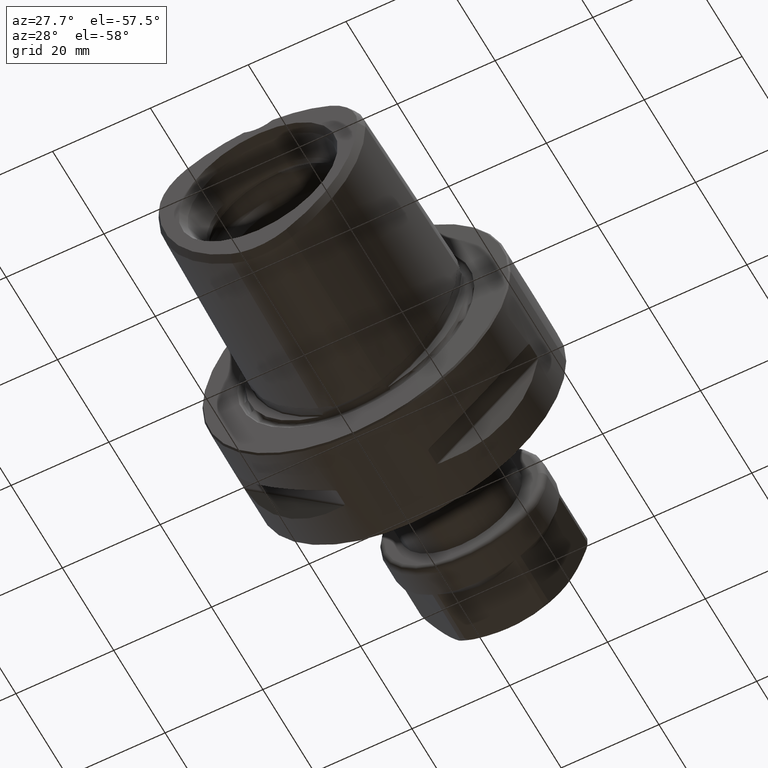
[diagram: clean part render]
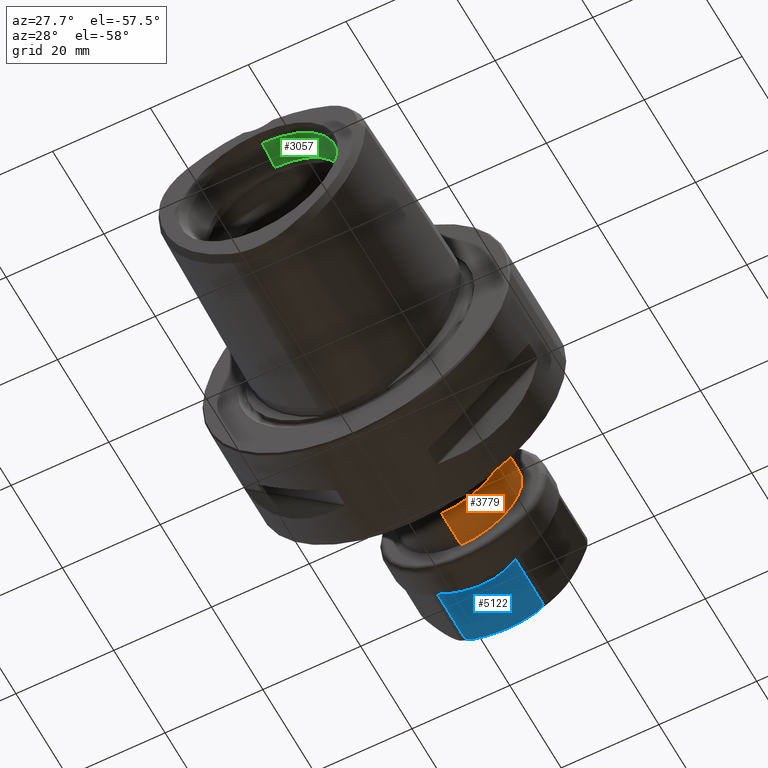
[diagram: same view with three faces highlighted in distinct colors, each labeled with its STEP entity id]
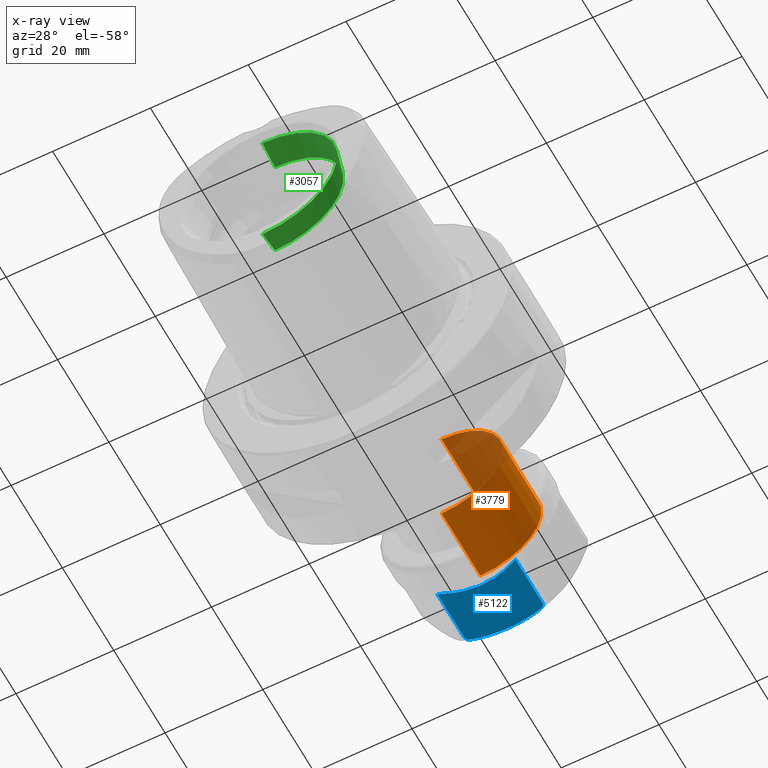
[diagram: x-ray of the same camera — body ghosted, the three highlighted faces saturated]
A machine part, auxiliary view with three faces highlighted in distinct colors.
The next image is the same camera in x-ray (body ghosted, the three faces saturated) — at least one of them is partly hidden behind the body in this view.
Their STEP definitions:

[orange] entity #3779 — the highlighted cylindrical surface (partial cylindrical patch) has radius 12.5 mm, axis along (0, 1, 0).
#1690=DIRECTION('',(1.052195914751E-12,-1.E0,0.E0));
#1691=VECTOR('',#1690,1.508578643763E1);
#1692=CARTESIAN_POINT('',(0.E0,4.85E1,-1.25E1));
#1693=LINE('',#1692,#1691);
#1699=DIRECTION('',(-1.052318335199E-12,-1.E0,0.E0));
#1700=VECTOR('',#1699,1.508578643763E1);
#1701=CARTESIAN_POINT('',(0.E0,4.85E1,1.25E1));
#1702=LINE('',#1701,#1700);
#1703=CARTESIAN_POINT('',(0.E0,3.341421356237E1,0.E0));
#1704=DIRECTION('',(0.E0,1.E0,0.E0));
#1705=DIRECTION('',(0.E0,0.E0,1.E0));
#1706=AXIS2_PLACEMENT_3D('',#1703,#1704,#1705);
#1708=CARTESIAN_POINT('',(0.E0,4.85E1,0.E0));
#1709=DIRECTION('',(0.E0,1.E0,0.E0));
#1710=DIRECTION('',(0.E0,0.E0,1.E0));
#1711=AXIS2_PLACEMENT_3D('',#1708,#1709,#1710);
#2138=CARTESIAN_POINT('',(0.E0,4.85E1,1.25E1));
#2139=CARTESIAN_POINT('',(0.E0,4.85E1,-1.25E1));
#2140=VERTEX_POINT('',#2138);
#2141=VERTEX_POINT('',#2139);
#2154=CARTESIAN_POINT('',(0.E0,3.341421356237E1,-1.25E1));
#2155=CARTESIAN_POINT('',(0.E0,3.341421356237E1,1.25E1));
#2156=VERTEX_POINT('',#2154);
#2157=VERTEX_POINT('',#2155);
#3767=CARTESIAN_POINT('',(0.E0,2.0675E1,0.E0));
#3768=DIRECTION('',(0.E0,1.E0,0.E0));
#3769=DIRECTION('',(0.E0,0.E0,-1.E0));
#3770=AXIS2_PLACEMENT_3D('',#3767,#3768,#3769);
#3771=CYLINDRICAL_SURFACE('',#3770,1.25E1);
#3772=ORIENTED_EDGE('',*,*,#3732,.F.);
#3773=ORIENTED_EDGE('',*,*,#3762,.F.);
#3775=ORIENTED_EDGE('',*,*,#3774,.T.);
#3776=ORIENTED_EDGE('',*,*,#3758,.T.);
#3777=EDGE_LOOP('',(#3772,#3773,#3775,#3776));
#3778=FACE_OUTER_BOUND('',#3777,.F.);
#3779=ADVANCED_FACE('',(#3778),#3771,.T.);
#1707=CIRCLE('',#1706,1.25E1);
#1712=CIRCLE('',#1711,1.25E1);
#3732=EDGE_CURVE('',#2157,#2156,#1707,.T.);
#3758=EDGE_CURVE('',#2141,#2156,#1693,.T.);
#3762=EDGE_CURVE('',#2140,#2157,#1702,.T.);
#3774=EDGE_CURVE('',#2140,#2141,#1712,.T.);

[blue] entity #5122 — the highlighted planar face has unit normal (0, 0, 1).
#4365=CARTESIAN_POINT('',(1.762879311067E1,-6.568152327710E0,-1.5E1));
#4366=CARTESIAN_POINT('',(1.783518476881E1,-5.676920146633E0,-1.5E1));
#4367=CARTESIAN_POINT('',(1.817379271881E1,-3.907290139793E0,-1.5E1));
#4368=CARTESIAN_POINT('',(1.843326934202E1,-1.305260671272E0,-1.5E1));
#4369=CARTESIAN_POINT('',(1.843317407038E1,1.306799612845E0,-1.5E1));
#4370=CARTESIAN_POINT('',(1.817365600931E1,3.908043632508E0,-1.5E1));
#4371=CARTESIAN_POINT('',(1.783512110256E1,5.677195067685E0,-1.5E1));
#4372=CARTESIAN_POINT('',(1.762879311067E1,6.568152327710E0,-1.5E1));
#4453=CARTESIAN_POINT('',(1.762879311067E1,6.568152327710E0,-1.5E1));
#4454=CARTESIAN_POINT('',(1.760135930288E1,6.686615896319E0,-1.5E1));
#4455=CARTESIAN_POINT('',(1.753829156841E1,6.919562422553E0,-1.5E1));
#4456=CARTESIAN_POINT('',(1.740404374214E1,7.268447683235E0,-1.5E1));
#4457=CARTESIAN_POINT('',(1.723276370862E1,7.572951749063E0,-1.5E1));
#4458=CARTESIAN_POINT('',(1.702726259196E1,7.811872918453E0,-1.5E1));
#4459=CARTESIAN_POINT('',(1.679442486846E1,7.964403573631E0,-1.5E1));
#4460=CARTESIAN_POINT('',(1.663092243804E1,8.E0,-1.5E1));
#4461=CARTESIAN_POINT('',(1.654626135594E1,8.E0,-1.5E1));
#4473=CARTESIAN_POINT('',(1.654626135594E1,-8.E0,-1.5E1));
#4474=CARTESIAN_POINT('',(1.663133375969E1,-8.E0,-1.5E1));
#4475=CARTESIAN_POINT('',(1.679554974256E1,-7.964122117397E0,-1.5E1));
#4476=CARTESIAN_POINT('',(1.702967586056E1,-7.809862385039E0,-1.5E1));
#4477=CARTESIAN_POINT('',(1.723504960512E1,-7.569565720791E0,-1.5E1));
#4478=CARTESIAN_POINT('',(1.740538646210E1,-7.265348519454E0,-1.5E1));
#4479=CARTESIAN_POINT('',(1.753869894456E1,-6.918091275530E0,-1.5E1));
#4480=CARTESIAN_POINT('',(1.760147975856E1,-6.686095749444E0,-1.5E1));
#4481=CARTESIAN_POINT('',(1.762879311067E1,-6.568152327710E0,-1.5E1));
#4594=CARTESIAN_POINT('',(6.010071585285E0,8.E0,-1.5E1));
#4595=CARTESIAN_POINT('',(6.251536961891E0,7.486862132702E0,-1.5E1));
#4596=CARTESIAN_POINT('',(6.679735917781E0,6.499433665538E0,-1.5E1));
#4597=CARTESIAN_POINT('',(7.167160045054E0,5.147288255829E0,-1.5E1));
#4598=CARTESIAN_POINT('',(7.522681539671E0,3.910656272611E0,-1.5E1));
#4599=CARTESIAN_POINT('',(7.766094592583E0,2.783330816111E0,-1.500000000001E1));
#4600=CARTESIAN_POINT('',(7.917589910616E0,1.759727926737E0,-1.499999999997E1));
#4601=CARTESIAN_POINT('',(7.995729972121E0,8.254980561117E-1,
-1.500000000013E1));
#4602=CARTESIAN_POINT('',(8.017089678906E0,5.846811738375E-7,
-1.499999999953E1));
#4603=CARTESIAN_POINT('',(7.995729245993E0,-8.255142948753E-1,
-1.500000000176E1));
#4604=CARTESIAN_POINT('',(7.917587784957E0,-1.759744643474E0,
-1.499999999344E1));
#4605=CARTESIAN_POINT('',(7.766090386609E0,-2.783352982962E0,
-1.500000002449E1));
#4606=CARTESIAN_POINT('',(7.522674713490E0,-3.910682252810E0,
-1.499999990861E1));
#4607=CARTESIAN_POINT('',(7.167150094838E0,-5.147316726988E0,
-1.500000034109E1));
#4608=CARTESIAN_POINT('',(6.679726769323E0,-6.499455996081E0,
-1.499999872704E1));
#4609=CARTESIAN_POINT('',(6.251530896887E0,-7.486870389601E0,
-1.500000274284E1));
#4610=CARTESIAN_POINT('',(6.010069795969E0,-7.999999403549E0,
-1.500000274284E1));
#4612=DIRECTION('',(1.E0,-5.660973854207E-8,2.603253999531E-7));
#4613=VECTOR('',#4612,1.053619155998E1);
#4614=CARTESIAN_POINT('',(6.010069795969E0,-7.999999403549E0,
-1.500000274284E1));
#4615=LINE('',#4614,#4613);
#4616=DIRECTION('',(-1.E0,0.E0,0.E0));
#4617=VECTOR('',#4616,1.053618977066E1);
#4618=CARTESIAN_POINT('',(1.654626135594E1,8.E0,-1.5E1));
#4619=LINE('',#4618,#4617);
#4845=VERTEX_POINT('',#4365);
#4846=VERTEX_POINT('',#4372);
#4857=VERTEX_POINT('',#4461);
#4858=VERTEX_POINT('',#4473);
#4867=CARTESIAN_POINT('',(6.010015861223E0,8.000026222654E0,-1.500004916947E1));
#4868=CARTESIAN_POINT('',(6.010015861223E0,-8.000025887464E0,
-1.500004854096E1));
#4869=VERTEX_POINT('',#4867);
#4870=VERTEX_POINT('',#4868);
#5108=CARTESIAN_POINT('',(1.9E1,8.660254037844E0,-1.5E1));
#5109=DIRECTION('',(0.E0,0.E0,1.E0));
#5110=DIRECTION('',(0.E0,-1.E0,0.E0));
#5111=AXIS2_PLACEMENT_3D('',#5108,#5109,#5110);
#5112=PLANE('',#5111);
#5114=ORIENTED_EDGE('',*,*,#5113,.T.);
#5115=ORIENTED_EDGE('',*,*,#4961,.T.);
#5116=ORIENTED_EDGE('',*,*,#5010,.T.);
#5117=ORIENTED_EDGE('',*,*,#4915,.T.);
#5118=ORIENTED_EDGE('',*,*,#4997,.T.);
#5119=ORIENTED_EDGE('',*,*,#4965,.T.);
#5120=EDGE_LOOP('',(#5114,#5115,#5116,#5117,#5118,#5119));
#5121=FACE_OUTER_BOUND('',#5120,.F.);
#5122=ADVANCED_FACE('',(#5121),#5112,.F.);
#4373=B_SPLINE_CURVE_WITH_KNOTS('',3,(#4365,#4366,#4367,#4368,#4369,#4370,#4371,
#4372),.UNSPECIFIED.,.F.,.F.,(4,1,1,1,1,4),(0.E0,2.E-1,4.E-1,6.E-1,8.E-1,1.E0),
.UNSPECIFIED.);
#4462=B_SPLINE_CURVE_WITH_KNOTS('',3,(#4453,#4454,#4455,#4456,#4457,#4458,#4459,
#4460,#4461),.UNSPECIFIED.,.F.,.F.,(4,1,1,1,1,1,4),(0.E0,1.666666666667E-1,
3.333333333333E-1,5.E-1,6.666666666667E-1,8.333333333333E-1,1.E0),
.UNSPECIFIED.);
#4482=B_SPLINE_CURVE_WITH_KNOTS('',3,(#4473,#4474,#4475,#4476,#4477,#4478,#4479,
#4480,#4481),.UNSPECIFIED.,.F.,.F.,(4,1,1,1,1,1,4),(0.E0,1.666666666667E-1,
3.333333333333E-1,5.E-1,6.666666666667E-1,8.333333333333E-1,1.E0),
.UNSPECIFIED.);
#4611=B_SPLINE_CURVE_WITH_KNOTS('',3,(#4594,#4595,#4596,#4597,#4598,#4599,#4600,
#4601,#4602,#4603,#4604,#4605,#4606,#4607,#4608,#4609,#4610),.UNSPECIFIED.,.F.,
.F.,(4,1,1,1,1,1,1,1,1,1,1,1,1,1,4),(0.E0,7.142857142857E-2,1.428571428571E-1,
2.142857142857E-1,2.857142857143E-1,3.571428571429E-1,4.285714285714E-1,5.E-1,
5.714285714286E-1,6.428571428571E-1,7.142857142857E-1,7.857142857143E-1,
8.571428571429E-1,9.285714285714E-1,1.E0),.UNSPECIFIED.);
#4915=EDGE_CURVE('',#4845,#4846,#4373,.T.);
#4961=EDGE_CURVE('',#4870,#4858,#4615,.T.);
#4965=EDGE_CURVE('',#4857,#4869,#4619,.T.);
#4997=EDGE_CURVE('',#4846,#4857,#4462,.T.);
#5010=EDGE_CURVE('',#4858,#4845,#4482,.T.);
#5113=EDGE_CURVE('',#4869,#4870,#4611,.T.);

[green] entity #3057 — the highlighted conical surface has half-angle 15 deg.
#889=CARTESIAN_POINT('',(0.E0,-3.147537645984E1,0.E0));
#890=DIRECTION('',(0.E0,-1.E0,0.E0));
#891=DIRECTION('',(0.E0,0.E0,-1.E0));
#892=AXIS2_PLACEMENT_3D('',#889,#890,#891);
#1070=DIRECTION('',(0.E0,-9.659258262891E-1,2.588190451025E-1));
#1071=VECTOR('',#1070,5.072853284009E0);
#1072=CARTESIAN_POINT('',(0.E0,-3.147537645984E1,1.40125E1));
#1073=LINE('',#1072,#1071);
#1074=DIRECTION('',(0.E0,-9.659258262891E-1,-2.588190451025E-1));
#1075=VECTOR('',#1074,5.072853284009E0);
#1076=CARTESIAN_POINT('',(0.E0,-3.147537645984E1,-1.40125E1));
#1077=LINE('',#1076,#1075);
#1082=CARTESIAN_POINT('',(0.E0,-3.637537645984E1,0.E0));
#1083=DIRECTION('',(0.E0,1.E0,0.E0));
#1084=DIRECTION('',(0.E0,0.E0,1.E0));
#1085=AXIS2_PLACEMENT_3D('',#1082,#1083,#1084);
#2072=CARTESIAN_POINT('',(0.E0,-3.637537645984E1,1.532545104291E1));
#2073=CARTESIAN_POINT('',(0.E0,-3.637537645984E1,-1.532545104291E1));
#2074=VERTEX_POINT('',#2072);
#2075=VERTEX_POINT('',#2073);
#2080=CARTESIAN_POINT('',(0.E0,-3.147537645984E1,1.40125E1));
#2081=CARTESIAN_POINT('',(0.E0,-3.147537645984E1,-1.40125E1));
#2082=VERTEX_POINT('',#2080);
#2083=VERTEX_POINT('',#2081);
#3045=CARTESIAN_POINT('',(0.E0,-3.392537645984E1,0.E0));
#3046=DIRECTION('',(0.E0,-1.E0,0.E0));
#3047=DIRECTION('',(0.E0,0.E0,1.E0));
#3048=AXIS2_PLACEMENT_3D('',#3045,#3046,#3047);
#3049=CONICAL_SURFACE('',#3048,1.466897552146E1,1.5E1);
#3050=ORIENTED_EDGE('',*,*,#2784,.T.);
#3051=ORIENTED_EDGE('',*,*,#3040,.T.);
#3053=ORIENTED_EDGE('',*,*,#3052,.T.);
#3054=ORIENTED_EDGE('',*,*,#3036,.F.);
#3055=EDGE_LOOP('',(#3050,#3051,#3053,#3054));
#3056=FACE_OUTER_BOUND('',#3055,.F.);
#3057=ADVANCED_FACE('',(#3056),#3049,.F.);
#893=CIRCLE('',#892,1.40125E1);
#1086=CIRCLE('',#1085,1.532545104291E1);
#2784=EDGE_CURVE('',#2083,#2082,#893,.T.);
#3036=EDGE_CURVE('',#2083,#2075,#1077,.T.);
#3040=EDGE_CURVE('',#2082,#2074,#1073,.T.);
#3052=EDGE_CURVE('',#2074,#2075,#1086,.T.);